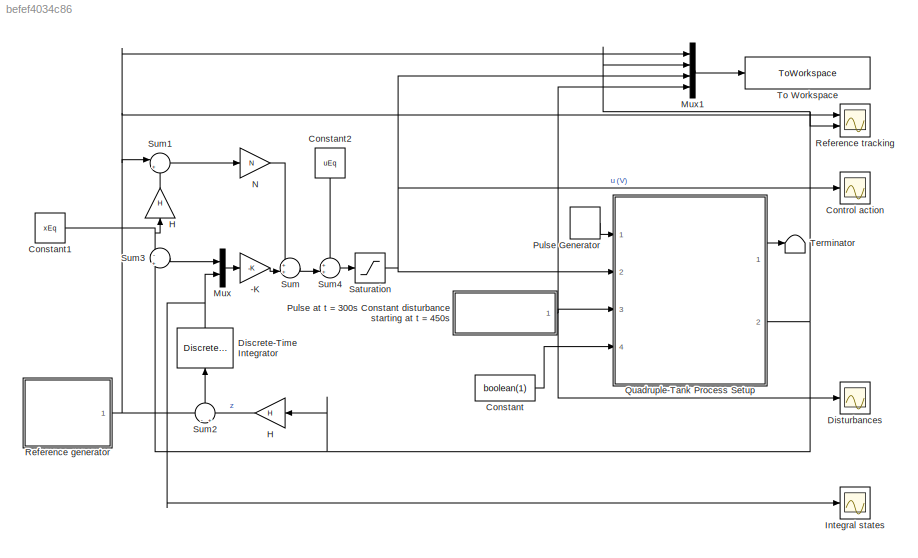
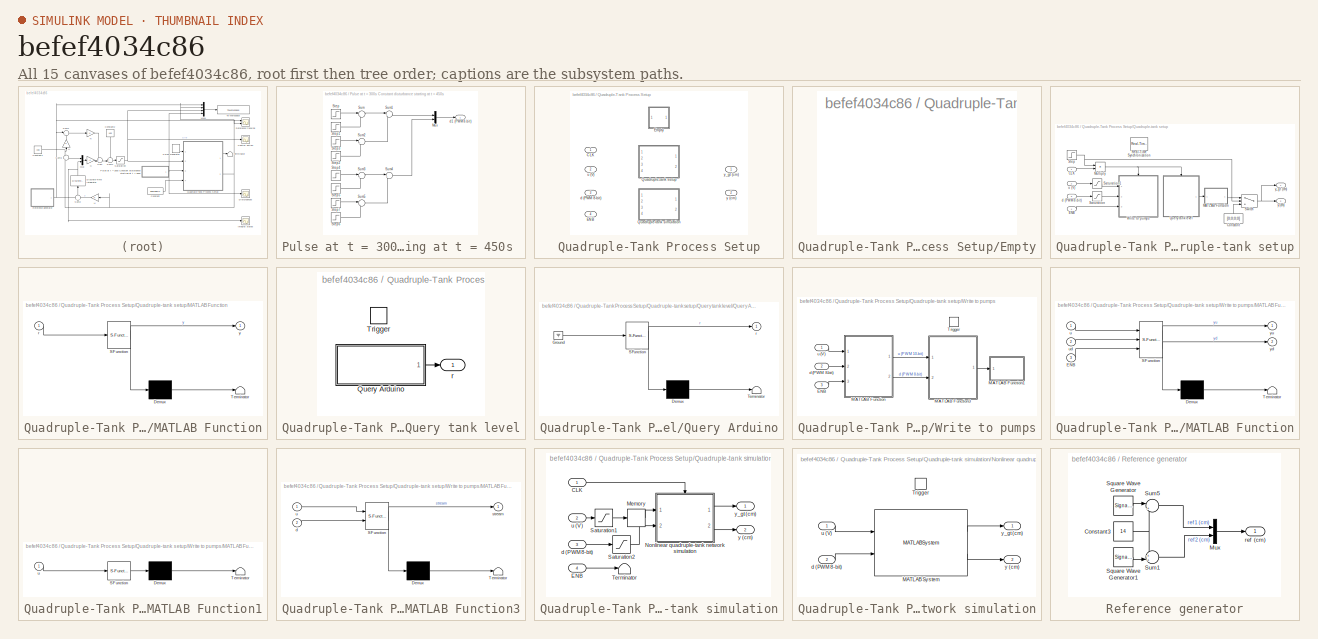
[diagram: thumbnail index - all 15 canvases of the model, root first then tree order]
MODEL slx_befef4034c86
KIND model
CONFIG AbsTol = auto
CONFIG EnableMultiTasking = off
CONFIG FixedStep = 0.5
CONFIG MaxStep = auto
CONFIG MinStep = auto
CONFIG RelTol = 1e-3
CONFIG SampleTimeConstraint = Unconstrained
CONFIG SolverName = FixedStepDiscrete
CONFIG StartTime = 0.0
CONFIG StopTime = 720
BLOCK [Gain] -K
  Gain = -K
  Multiplication = Matrix(K*u) (u vector)
BLOCK [Constant] Constant
  Priority = 4
  Value = boolean(1)
BLOCK [Constant] Constant1
  Value = xEq
BLOCK [Constant] Constant2
  NameLocation = left
  Value = uEq
BLOCK [Scope] Control action
  Floating = off
  NumInputPorts = 1
  Ports = [1]
  ScopeSpecificationString = Simulink.scopes.TimeScopeBlockCfg('CurrentConfiguration', extmgr.ConfigurationSet(extmgr.Configuration('Core','General UI',true),extmgr.Configuration('Core','Source UI',true),extmgr.Configuration('Sources','WiredSimulink',true,'DataLoggingVariableName','ScopeData1'),extmgr.Configuration('Visuals','Time Domain',true,'SerializedDisplays',{struct('MinYLimReal','-1.5','MaxYLimReal','13.5','YLabelReal'...<+1401ch>
BLOCK [DiscreteIntegrator] Discrete-Time Integrator
  ICPrevOutput = DiscIntNeverNeededParam
  ICPrevScaledInput = DiscIntNeverNeededParam
  InitialConditionSetting = Auto
  LimitOutput = on
  LowerSaturationLimit = -15
  NameLocation = right
  Ports = [1, 1]
  SampleTime = -1
  UpperSaturationLimit = 15
BLOCK [Scope] Disturbances
  Floating = off
  NumInputPorts = 1
  Ports = [1]
  ScopeSpecificationString = Simulink.scopes.TimeScopeBlockCfg('CurrentConfiguration', extmgr.ConfigurationSet(extmgr.Configuration('Core','General UI',true),extmgr.Configuration('Core','Source UI',true),extmgr.Configuration('Sources','WiredSimulink',true,'DataLoggingVariableName','ScopeData2'),extmgr.Configuration('Visuals','Time Domain',true,'SerializedDisplays',{struct('MinYLimReal','-6.25','MaxYLimReal','56.25','YLabelRea...<+1472ch>
BLOCK [Gain] H
  Gain = H
  Multiplication = Matrix(K*u) (u vector)
  NameLocation = top
BLOCK [Gain] H 
  Gain = H
  Multiplication = Matrix(K*u) (u vector)
  NameLocation = right
BLOCK [Scope] Integral states
  Floating = off
  NumInputPorts = 1
  Ports = [1]
  ScopeSpecificationString = Simulink.scopes.TimeScopeBlockCfg('CurrentConfiguration', extmgr.ConfigurationSet(extmgr.Configuration('Core','General UI',true),extmgr.Configuration('Core','Source UI',true),extmgr.Configuration('Sources','WiredSimulink',true,'DataLoggingVariableName','ScopeData3'),extmgr.Configuration('Visuals','Time Domain',true,'SerializedDisplays',{struct('MinYLimReal','-18.75','MaxYLimReal','18.75','YLabelRe...<+1429ch>
BLOCK [Mux] Mux
  DisplayOption = bar
  Inputs = 2
  Ports = [2, 1]
BLOCK [Mux] Mux1
  DisplayOption = bar
  Ports = [4, 1]
BLOCK [Gain] N
  Gain = N
  Multiplication = Matrix(K*u) (u vector)
BLOCK [DiscretePulseGenerator] Pulse Generator
  Period = 1
  Ports = [0, 1]
  PulseType = Time based
  PulseWidth = 50
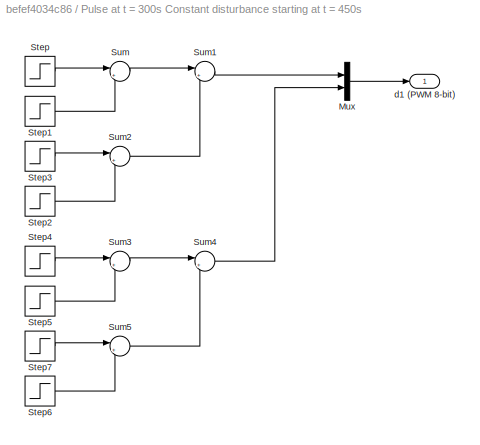
BLOCK [SubSystem] Pulse at t = 300s Constant disturbance starting at t = 450s 
  Ports = [0, 1]
  RequestExecContextInheritance = off
BLOCK [Mux] Pulse at t = 300s Constant disturbance starting at t = 450s /Mux
  DisplayOption = bar
  Inputs = 2
  Ports = [2, 1]
BLOCK [Step] Pulse at t = 300s Constant disturbance starting at t = 450s /Step
  After = 50
  SampleTime = 0
  Time = 300
BLOCK [Step] Pulse at t = 300s Constant disturbance starting at t = 450s /Step1
  After = -50
  SampleTime = 0
  Time = 304
BLOCK [Step] Pulse at t = 300s Constant disturbance starting at t = 450s /Step2
  After = -41
  SampleTime = 0
  Time = 451
BLOCK [Step] Pulse at t = 300s Constant disturbance starting at t = 450s /Step3
  After = 50
  SampleTime = 0
  Time = 450
BLOCK [Step] Pulse at t = 300s Constant disturbance starting at t = 450s /Step4
  After = 50
  SampleTime = 0
  Time = 250
BLOCK [Step] Pulse at t = 300s Constant disturbance starting at t = 450s /Step5
  After = -50
  SampleTime = 0
  Time = 254
BLOCK [Step] Pulse at t = 300s Constant disturbance starting at t = 450s /Step6
  After = -41
  SampleTime = 0
  Time = 401
BLOCK [Step] Pulse at t = 300s Constant disturbance starting at t = 450s /Step7
  After = 50
  SampleTime = 0
  Time = 400
BLOCK [Sum] Pulse at t = 300s Constant disturbance starting at t = 450s /Sum
  Inputs = |++
  Ports = [2, 1]
BLOCK [Sum] Pulse at t = 300s Constant disturbance starting at t = 450s /Sum1
  Inputs = |++
  Ports = [2, 1]
BLOCK [Sum] Pulse at t = 300s Constant disturbance starting at t = 450s /Sum2
  Inputs = |++
  Ports = [2, 1]
BLOCK [Sum] Pulse at t = 300s Constant disturbance starting at t = 450s /Sum3
  Inputs = |++
  Ports = [2, 1]
BLOCK [Sum] Pulse at t = 300s Constant disturbance starting at t = 450s /Sum4
  Inputs = |++
  Ports = [2, 1]
BLOCK [Sum] Pulse at t = 300s Constant disturbance starting at t = 450s /Sum5
  Inputs = |++
  Ports = [2, 1]
BLOCK [Outport] Pulse at t = 300s Constant disturbance starting at t = 450s /d1 (PWM 8-bit)
  VectorParamsAs1DForOutWhenUnconnected = off
BLOCK [SubSystem] Quadruple-Tank Process Setup
  InitFcn = % Load parameters\ncte = quadrupleLoadParameters();\n% Select simulation mode if unspecified\nif ~exist('experimentalSetup')\nexperimentalSetup = false;\nend\nif experimentalSetup\nif exist('arduinoPort')\nif ~isempty(instrfind)\nfclose(instrfind);\ndelete(instrfind);\nend\narduino = serial(arduinoPort,...\n                'BaudRate',9600,...\n                'ByteOrder','bigEndian',...\n                'DataBit...<+223ch>
  Ports = [4, 2]
  RequestExecContextInheritance = off
  StopFcn = if experimentalSetup\nfclose(arduino);\nend
  Variant = on
BLOCK [Inport] Quadruple-Tank Process Setup/CLK
BLOCK [Inport] Quadruple-Tank Process Setup/ENB
  Port = 4
BLOCK [SubSystem] Quadruple-Tank Process Setup/Empty
  Ports = []
  RequestExecContextInheritance = off
  VariantControl = %
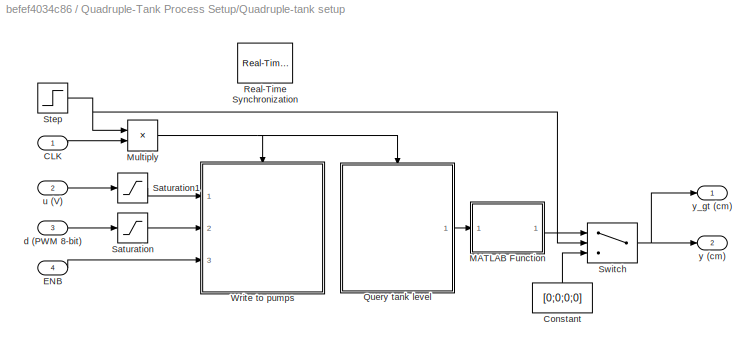
BLOCK [SubSystem] Quadruple-Tank Process Setup/Quadruple-tank setup
  Ports = [4, 2]
  RequestExecContextInheritance = off
  VariantControl = experimentalSetup == true
BLOCK [Inport] Quadruple-Tank Process Setup/Quadruple-tank setup/CLK
BLOCK [Constant] Quadruple-Tank Process Setup/Quadruple-tank setup/Constant
  NameLocation = right
  Value = [0;0;0;0]
BLOCK [Inport] Quadruple-Tank Process Setup/Quadruple-tank setup/ENB
  Port = 4
BLOCK [SubSystem] Quadruple-Tank Process Setup/Quadruple-tank setup/MATLAB Function
  ErrorFcn = Stateflow.Translate.translate
  PermitHierarchicalResolution = ExplicitOnly
  Ports = [1, 1]
  RequestExecContextInheritance = off
  SFBlockType = MATLAB Function
  TreatAsAtomicUnit = on
BLOCK [Demux] Quadruple-Tank Process Setup/Quadruple-tank setup/MATLAB Function/ Demux 
  Outputs = 1
  Ports = [1, 1]
BLOCK [S-Function] Quadruple-Tank Process Setup/Quadruple-tank setup/MATLAB Function/ SFunction 
  EnableBusSupport = on
  FunctionName = sf_sfun
  Parameters = cte
  PortCounts = [1 2]
  Ports = [1, 2]
  SFcnIsStateOwnerBlock = off
  SFunctionDeploymentMode = off
  Tag = Stateflow S-Function 4
BLOCK [Terminator] Quadruple-Tank Process Setup/Quadruple-tank setup/MATLAB Function/ Terminator 
BLOCK [Inport] Quadruple-Tank Process Setup/Quadruple-tank setup/MATLAB Function/r
BLOCK [Outport] Quadruple-Tank Process Setup/Quadruple-tank setup/MATLAB Function/y
  VectorParamsAs1DForOutWhenUnconnected = off
BLOCK [Product] Quadruple-Tank Process Setup/Quadruple-tank setup/Multiply
  Ports = [2, 1]
BLOCK [SubSystem] Quadruple-Tank Process Setup/Quadruple-tank setup/Query tank level
  Ports = [0, 1, 0, 1]
  Priority = 1
  RequestExecContextInheritance = off
BLOCK [SubSystem] Quadruple-Tank Process Setup/Quadruple-tank setup/Query tank level/Query Arduino
  ErrorFcn = Stateflow.Translate.translate
  PermitHierarchicalResolution = ExplicitOnly
  Ports = [0, 1]
  RequestExecContextInheritance = off
  SFBlockType = MATLAB Function
  TreatAsAtomicUnit = on
BLOCK [Demux] Quadruple-Tank Process Setup/Quadruple-tank setup/Query tank level/Query Arduino/ Demux 
  Outputs = 1
  Ports = [1, 1]
BLOCK [Ground] Quadruple-Tank Process Setup/Quadruple-tank setup/Query tank level/Query Arduino/ Ground 
BLOCK [S-Function] Quadruple-Tank Process Setup/Quadruple-tank setup/Query tank level/Query Arduino/ SFunction 
  EnableBusSupport = on
  FunctionName = sf_sfun
  PortCounts = [1 2]
  Ports = [1, 2]
  SFcnIsStateOwnerBlock = off
  SFunctionDeploymentMode = off
  Tag = Stateflow S-Function 2
BLOCK [Terminator] Quadruple-Tank Process Setup/Quadruple-tank setup/Query tank level/Query Arduino/ Terminator 
BLOCK [Outport] Quadruple-Tank Process Setup/Quadruple-tank setup/Query tank level/Query Arduino/r
  VectorParamsAs1DForOutWhenUnconnected = off
BLOCK [TriggerPort] Quadruple-Tank Process Setup/Quadruple-tank setup/Query tank level/Trigger
  PortDimensions = 1
  Ports = []
  StatesWhenEnabling = held
  VariantControl = Variant
BLOCK [Outport] Quadruple-Tank Process Setup/Quadruple-tank setup/Query tank level/r
  VectorParamsAs1DForOutWhenUnconnected = off
BLOCK [Reference] Quadruple-Tank Process Setup/Quadruple-tank setup/Real-Time Synchronization  REF=sldrtlib/Real-Time
Synchronization
  Ports = []
  Priority = 5
  SourceBlock = sldrtlib/Real-Time\nSynchronization
  SourceProductBaseCode = WT
  SourceType = Simulink Desktop Real-Time Synchronization
BLOCK [Saturate] Quadruple-Tank Process Setup/Quadruple-tank setup/Saturation
  LowerLimit = 0
  UpperLimit = 255
BLOCK [Saturate] Quadruple-Tank Process Setup/Quadruple-tank setup/Saturation1
  LowerLimit = cte.uMin
  UpperLimit = cte.uMax
BLOCK [Step] Quadruple-Tank Process Setup/Quadruple-tank setup/Step
  SampleTime = 0
  Time = 5
BLOCK [Switch] Quadruple-Tank Process Setup/Quadruple-tank setup/Switch
  Criteria = u2 ~= 0
  InputSameDT = off
  SaturateOnIntegerOverflow = off
BLOCK [SubSystem] Quadruple-Tank Process Setup/Quadruple-tank setup/Write to pumps
  Ports = [3, 0, 0, 1]
  Priority = 100
  RequestExecContextInheritance = off
BLOCK [Inport] Quadruple-Tank Process Setup/Quadruple-tank setup/Write to pumps/ENB
  Port = 3
BLOCK [SubSystem] Quadruple-Tank Process Setup/Quadruple-tank setup/Write to pumps/MATLAB Function
  ErrorFcn = Stateflow.Translate.translate
  PermitHierarchicalResolution = ExplicitOnly
  Ports = [3, 2]
  RequestExecContextInheritance = off
  SFBlockType = MATLAB Function
  TreatAsAtomicUnit = on
BLOCK [Demux] Quadruple-Tank Process Setup/Quadruple-tank setup/Write to pumps/MATLAB Function/ Demux 
  Outputs = 1
  Ports = [1, 1]
BLOCK [S-Function] Quadruple-Tank Process Setup/Quadruple-tank setup/Write to pumps/MATLAB Function/ SFunction 
  EnableBusSupport = on
  FunctionName = sf_sfun
  Parameters = cte
  PortCounts = [3 3]
  Ports = [3, 3]
  SFcnIsStateOwnerBlock = off
  SFunctionDeploymentMode = off
  Tag = Stateflow S-Function 3
BLOCK [Terminator] Quadruple-Tank Process Setup/Quadruple-tank setup/Write to pumps/MATLAB Function/ Terminator 
BLOCK [Inport] Quadruple-Tank Process Setup/Quadruple-tank setup/Write to pumps/MATLAB Function/ENB
  Port = 3
BLOCK [Inport] Quadruple-Tank Process Setup/Quadruple-tank setup/Write to pumps/MATLAB Function/u
BLOCK [Inport] Quadruple-Tank Process Setup/Quadruple-tank setup/Write to pumps/MATLAB Function/ud
  Port = 2
BLOCK [Outport] Quadruple-Tank Process Setup/Quadruple-tank setup/Write to pumps/MATLAB Function/yd
  Port = 2
  VectorParamsAs1DForOutWhenUnconnected = off
BLOCK [Outport] Quadruple-Tank Process Setup/Quadruple-tank setup/Write to pumps/MATLAB Function/yu
  VectorParamsAs1DForOutWhenUnconnected = off
BLOCK [SubSystem] Quadruple-Tank Process Setup/Quadruple-tank setup/Write to pumps/MATLAB Function1
  ErrorFcn = Stateflow.Translate.translate
  PermitHierarchicalResolution = ExplicitOnly
  Ports = [1]
  RequestExecContextInheritance = off
  SFBlockType = MATLAB Function
  TreatAsAtomicUnit = on
BLOCK [Demux] Quadruple-Tank Process Setup/Quadruple-tank setup/Write to pumps/MATLAB Function1/ Demux 
  Outputs = 1
  Ports = [1, 1]
BLOCK [S-Function] Quadruple-Tank Process Setup/Quadruple-tank setup/Write to pumps/MATLAB Function1/ SFunction 
  EnableBusSupport = on
  FunctionName = sf_sfun
  PortCounts = [1 1]
  Ports = [1, 1]
  SFcnIsStateOwnerBlock = off
  SFunctionDeploymentMode = off
  Tag = Stateflow S-Function 1
BLOCK [Terminator] Quadruple-Tank Process Setup/Quadruple-tank setup/Write to pumps/MATLAB Function1/ Terminator 
BLOCK [Inport] Quadruple-Tank Process Setup/Quadruple-tank setup/Write to pumps/MATLAB Function1/u
BLOCK [SubSystem] Quadruple-Tank Process Setup/Quadruple-tank setup/Write to pumps/MATLAB Function3
  ErrorFcn = Stateflow.Translate.translate
  PermitHierarchicalResolution = ExplicitOnly
  Ports = [2, 1]
  RequestExecContextInheritance = off
  SFBlockType = MATLAB Function
  TreatAsAtomicUnit = on
BLOCK [Demux] Quadruple-Tank Process Setup/Quadruple-tank setup/Write to pumps/MATLAB Function3/ Demux 
  Outputs = 1
  Ports = [1, 1]
BLOCK [S-Function] Quadruple-Tank Process Setup/Quadruple-tank setup/Write to pumps/MATLAB Function3/ SFunction 
  EnableBusSupport = on
  FunctionName = sf_sfun
  PortCounts = [2 2]
  Ports = [2, 2]
  SFcnIsStateOwnerBlock = off
  SFunctionDeploymentMode = off
  Tag = Stateflow S-Function 5
BLOCK [Terminator] Quadruple-Tank Process Setup/Quadruple-tank setup/Write to pumps/MATLAB Function3/ Terminator 
BLOCK [Inport] Quadruple-Tank Process Setup/Quadruple-tank setup/Write to pumps/MATLAB Function3/d
  Port = 2
BLOCK [Outport] Quadruple-Tank Process Setup/Quadruple-tank setup/Write to pumps/MATLAB Function3/stream
  VectorParamsAs1DForOutWhenUnconnected = off
BLOCK [Inport] Quadruple-Tank Process Setup/Quadruple-tank setup/Write to pumps/MATLAB Function3/u
BLOCK [TriggerPort] Quadruple-Tank Process Setup/Quadruple-tank setup/Write to pumps/Trigger
  PortDimensions = 1
  Ports = []
  StatesWhenEnabling = held
  VariantControl = Variant
BLOCK [Inport] Quadruple-Tank Process Setup/Quadruple-tank setup/Write to pumps/d (PWM 8-bit)
  Port = 2
BLOCK [Inport] Quadruple-Tank Process Setup/Quadruple-tank setup/Write to pumps/u (V)
BLOCK [Inport] Quadruple-Tank Process Setup/Quadruple-tank setup/d (PWM 8-bit)
  Port = 3
BLOCK [Inport] Quadruple-Tank Process Setup/Quadruple-tank setup/u (V)
  Port = 2
BLOCK [Outport] Quadruple-Tank Process Setup/Quadruple-tank setup/y (cm)
  Port = 2
  SignalType = real
  VarSizeSig = No
  VectorParamsAs1DForOutWhenUnconnected = off
BLOCK [Outport] Quadruple-Tank Process Setup/Quadruple-tank setup/y_gt (cm)
  SignalType = real
  VarSizeSig = No
  VectorParamsAs1DForOutWhenUnconnected = off
BLOCK [SubSystem] Quadruple-Tank Process Setup/Quadruple-tank simulation
  Ports = [4, 2]
  Priority = 4
  RequestExecContextInheritance = off
  VariantControl = experimentalSetup == false
BLOCK [Inport] Quadruple-Tank Process Setup/Quadruple-tank simulation/CLK
BLOCK [Inport] Quadruple-Tank Process Setup/Quadruple-tank simulation/ENB
  Port = 4
BLOCK [Memory] Quadruple-Tank Process Setup/Quadruple-tank simulation/Memory
BLOCK [SubSystem] Quadruple-Tank Process Setup/Quadruple-tank simulation/Nonlinear quadruple-tank network simulation
  Ports = [2, 2, 0, 1]
  Priority = 10
  RequestExecContextInheritance = off
BLOCK [MATLABSystem] Quadruple-Tank Process Setup/Quadruple-tank simulation/Nonlinear quadruple-tank network simulation/MATLAB System
  MaskDisplay = disp('quadrupleSimObj');\nport_label('input',1,'u');\nport_label('input',2,'d');\nport_label('output',1,'y_gt');\nport_label('output',2,'y');
  MaskType = quadrupleSimObj
  Ports = [2, 2]
  SimulateUsing = Interpreted execution
  System = quadrupleSimObj
BLOCK [TriggerPort] Quadruple-Tank Process Setup/Quadruple-tank simulation/Nonlinear quadruple-tank network simulation/Trigger
  PortDimensions = 1
  Ports = []
  StatesWhenEnabling = held
  VariantControl = Variant
BLOCK [Inport] Quadruple-Tank Process Setup/Quadruple-tank simulation/Nonlinear quadruple-tank network simulation/d (PWM 8-bit)
  Port = 2
BLOCK [Inport] Quadruple-Tank Process Setup/Quadruple-tank simulation/Nonlinear quadruple-tank network simulation/u (V)
BLOCK [Outport] Quadruple-Tank Process Setup/Quadruple-tank simulation/Nonlinear quadruple-tank network simulation/y (cm)
  Port = 2
  VectorParamsAs1DForOutWhenUnconnected = off
BLOCK [Outport] Quadruple-Tank Process Setup/Quadruple-tank simulation/Nonlinear quadruple-tank network simulation/y_gt (cm)
  VectorParamsAs1DForOutWhenUnconnected = off
BLOCK [Saturate] Quadruple-Tank Process Setup/Quadruple-tank simulation/Saturation1
  LowerLimit = cte.uMin
  UpperLimit = cte.uMax
BLOCK [Saturate] Quadruple-Tank Process Setup/Quadruple-tank simulation/Saturation2
  LowerLimit = 0
  UpperLimit = 2^8-1
BLOCK [Terminator] Quadruple-Tank Process Setup/Quadruple-tank simulation/Terminator
BLOCK [Inport] Quadruple-Tank Process Setup/Quadruple-tank simulation/d (PWM 8-bit)
  Port = 3
BLOCK [Inport] Quadruple-Tank Process Setup/Quadruple-tank simulation/u (V)
  Port = 2
BLOCK [Outport] Quadruple-Tank Process Setup/Quadruple-tank simulation/y (cm)
  Port = 2
  VectorParamsAs1DForOutWhenUnconnected = off
BLOCK [Outport] Quadruple-Tank Process Setup/Quadruple-tank simulation/y_gt (cm)
  VectorParamsAs1DForOutWhenUnconnected = off
BLOCK [Inport] Quadruple-Tank Process Setup/d (PWM 8-bit)
  Port = 3
BLOCK [Inport] Quadruple-Tank Process Setup/u (V)
  Port = 2
BLOCK [Outport] Quadruple-Tank Process Setup/y (cm)
  Port = 2
  VectorParamsAs1DForOutWhenUnconnected = off
BLOCK [Outport] Quadruple-Tank Process Setup/y_gt (cm)
  VectorParamsAs1DForOutWhenUnconnected = off
BLOCK [SubSystem] Reference generator
  Ports = [0, 1]
  RequestExecContextInheritance = off
BLOCK [Constant] Reference generator/Constant3
  Value = 14
BLOCK [Mux] Reference generator/Mux
  DisplayOption = bar
  Inputs = 2
  Ports = [2, 1]
BLOCK [SignalGenerator] Reference generator/Square Wave Generator
  Amplitude = 3
  Frequency = 1/240
  Ports = [0, 1]
  WaveForm = square
BLOCK [SignalGenerator] Reference generator/Square Wave Generator1
  Amplitude = 4
  Frequency = 1/300
  Ports = [0, 1]
  WaveForm = square
BLOCK [Sum] Reference generator/Sum1
  Inputs = ++|
  Ports = [2, 1]
BLOCK [Sum] Reference generator/Sum5
  Inputs = |++
  Ports = [2, 1]
BLOCK [Outport] Reference generator/ref (cm)
  VectorParamsAs1DForOutWhenUnconnected = off
BLOCK [Scope] Reference tracking
  Floating = off
  NumInputPorts = 2
  Ports = [2]
  ScopeSpecificationString = Simulink.scopes.TimeScopeBlockCfg('CurrentConfiguration', extmgr.ConfigurationSet(extmgr.Configuration('Core','General UI',true),extmgr.Configuration('Core','Source UI',true),extmgr.Configuration('Sources','WiredSimulink',true),extmgr.Configuration('Visuals','Time Domain',true,'SerializedDisplays',{struct('MinYLimReal','-2.45148','MaxYLimReal','22.06334','YLabelReal','','MinYLimMag','0.00000','Max...<+1537ch>
BLOCK [Saturate] Saturation
  LowerLimit = 0
  UpperLimit = 12
BLOCK [Sum] Sum
  Inputs = ++|
  Ports = [2, 1]
BLOCK [Sum] Sum1
  Inputs = |+-
  Ports = [2, 1]
BLOCK [Sum] Sum2
  Inputs = -|+
  NameLocation = right
  Ports = [2, 1]
BLOCK [Sum] Sum3
  Inputs = -|+
  Ports = [2, 1]
BLOCK [Sum] Sum4
  Inputs = ++|
  Ports = [2, 1]
BLOCK [Terminator] Terminator
BLOCK [ToWorkspace] To Workspace
  FixptAsFi = on
  MaxDataPoints = inf
  Ports = [1]
  SampleTime = 1
  SaveFormat = Timeseries
  VariableName = quadruple_example_LQR_data
LINE -K:1 -> Sum:2
NET Constant1:1 -> H :1, Sum3:1
LINE Constant2:1 -> Sum4:1
LINE Constant:1 -> Quadruple-Tank Process Setup:4
NET Discrete-Time Integrator:1 -> Integral states:1, Mux:2
LINE H :1 -> Sum1:2
LINE H:1 -> Sum2:2
LINE Mux1:1 -> To Workspace:1
LINE Mux:1 -> -K:1
LINE N:1 -> Sum:1
LINE Pulse Generator:1 -> Quadruple-Tank Process Setup:1
LINE Pulse at t = 300s Constant disturbance starting at t = 450s /Mux:1 -> Pulse at t = 300s Constant disturbance starting at t = 450s /d1 (PWM 8-bit):1
LINE Pulse at t = 300s Constant disturbance starting at t = 450s /Step1:1 -> Pulse at t = 300s Constant disturbance starting at t = 450s /Sum:2
LINE Pulse at t = 300s Constant disturbance starting at t = 450s /Step2:1 -> Pulse at t = 300s Constant disturbance starting at t = 450s /Sum2:2
LINE Pulse at t = 300s Constant disturbance starting at t = 450s /Step3:1 -> Pulse at t = 300s Constant disturbance starting at t = 450s /Sum2:1
LINE Pulse at t = 300s Constant disturbance starting at t = 450s /Step4:1 -> Pulse at t = 300s Constant disturbance starting at t = 450s /Sum3:1
LINE Pulse at t = 300s Constant disturbance starting at t = 450s /Step5:1 -> Pulse at t = 300s Constant disturbance starting at t = 450s /Sum3:2
LINE Pulse at t = 300s Constant disturbance starting at t = 450s /Step6:1 -> Pulse at t = 300s Constant disturbance starting at t = 450s /Sum5:2
LINE Pulse at t = 300s Constant disturbance starting at t = 450s /Step7:1 -> Pulse at t = 300s Constant disturbance starting at t = 450s /Sum5:1
LINE Pulse at t = 300s Constant disturbance starting at t = 450s /Step:1 -> Pulse at t = 300s Constant disturbance starting at t = 450s /Sum:1
LINE Pulse at t = 300s Constant disturbance starting at t = 450s /Sum1:1 -> Pulse at t = 300s Constant disturbance starting at t = 450s /Mux:1
LINE Pulse at t = 300s Constant disturbance starting at t = 450s /Sum2:1 -> Pulse at t = 300s Constant disturbance starting at t = 450s /Sum1:2
LINE Pulse at t = 300s Constant disturbance starting at t = 450s /Sum3:1 -> Pulse at t = 300s Constant disturbance starting at t = 450s /Sum4:1
LINE Pulse at t = 300s Constant disturbance starting at t = 450s /Sum4:1 -> Pulse at t = 300s Constant disturbance starting at t = 450s /Mux:2
LINE Pulse at t = 300s Constant disturbance starting at t = 450s /Sum5:1 -> Pulse at t = 300s Constant disturbance starting at t = 450s /Sum4:2
LINE Pulse at t = 300s Constant disturbance starting at t = 450s /Sum:1 -> Pulse at t = 300s Constant disturbance starting at t = 450s /Sum1:1
NET Pulse at t = 300s Constant disturbance starting at t = 450s :1 -> Disturbances:1, Mux1:4, Quadruple-Tank Process Setup:3
LINE Quadruple-Tank Process Setup/Quadruple-tank setup/CLK:1 -> Quadruple-Tank Process Setup/Quadruple-tank setup/Multiply:2
LINE Quadruple-Tank Process Setup/Quadruple-tank setup/Constant:1 -> Quadruple-Tank Process Setup/Quadruple-tank setup/Switch:3
LINE Quadruple-Tank Process Setup/Quadruple-tank setup/ENB:1 -> Quadruple-Tank Process Setup/Quadruple-tank setup/Write to pumps:3
LINE Quadruple-Tank Process Setup/Quadruple-tank setup/MATLAB Function:1 -> Quadruple-Tank Process Setup/Quadruple-tank setup/Switch:1
NET Quadruple-Tank Process Setup/Quadruple-tank setup/Multiply:1 -> Quadruple-Tank Process Setup/Quadruple-tank setup/Query tank level:trigger, Quadruple-Tank Process Setup/Quadruple-tank setup/Write to pumps:trigger
LINE Quadruple-Tank Process Setup/Quadruple-tank setup/Query tank level/Query Arduino:1 -> Quadruple-Tank Process Setup/Quadruple-tank setup/Query tank level/r:1
LINE Quadruple-Tank Process Setup/Quadruple-tank setup/Query tank level:1 -> Quadruple-Tank Process Setup/Quadruple-tank setup/MATLAB Function:1
LINE Quadruple-Tank Process Setup/Quadruple-tank setup/Saturation1:1 -> Quadruple-Tank Process Setup/Quadruple-tank setup/Write to pumps:1
LINE Quadruple-Tank Process Setup/Quadruple-tank setup/Saturation:1 -> Quadruple-Tank Process Setup/Quadruple-tank setup/Write to pumps:2
NET Quadruple-Tank Process Setup/Quadruple-tank setup/Step:1 -> Quadruple-Tank Process Setup/Quadruple-tank setup/Multiply:1, Quadruple-Tank Process Setup/Quadruple-tank setup/Switch:2
NET Quadruple-Tank Process Setup/Quadruple-tank setup/Switch:1 -> Quadruple-Tank Process Setup/Quadruple-tank setup/y (cm):1, Quadruple-Tank Process Setup/Quadruple-tank setup/y_gt (cm):1
LINE Quadruple-Tank Process Setup/Quadruple-tank setup/Write to pumps/ENB:1 -> Quadruple-Tank Process Setup/Quadruple-tank setup/Write to pumps/MATLAB Function:3
LINE Quadruple-Tank Process Setup/Quadruple-tank setup/Write to pumps/MATLAB Function3:1 -> Quadruple-Tank Process Setup/Quadruple-tank setup/Write to pumps/MATLAB Function1:1
LINE Quadruple-Tank Process Setup/Quadruple-tank setup/Write to pumps/MATLAB Function:1 -> Quadruple-Tank Process Setup/Quadruple-tank setup/Write to pumps/MATLAB Function3:1
LINE Quadruple-Tank Process Setup/Quadruple-tank setup/Write to pumps/MATLAB Function:2 -> Quadruple-Tank Process Setup/Quadruple-tank setup/Write to pumps/MATLAB Function3:2
LINE Quadruple-Tank Process Setup/Quadruple-tank setup/Write to pumps/d (PWM 8-bit):1 -> Quadruple-Tank Process Setup/Quadruple-tank setup/Write to pumps/MATLAB Function:2
LINE Quadruple-Tank Process Setup/Quadruple-tank setup/Write to pumps/u (V):1 -> Quadruple-Tank Process Setup/Quadruple-tank setup/Write to pumps/MATLAB Function:1
LINE Quadruple-Tank Process Setup/Quadruple-tank setup/d (PWM 8-bit):1 -> Quadruple-Tank Process Setup/Quadruple-tank setup/Saturation:1
LINE Quadruple-Tank Process Setup/Quadruple-tank setup/u (V):1 -> Quadruple-Tank Process Setup/Quadruple-tank setup/Saturation1:1
LINE Quadruple-Tank Process Setup/Quadruple-tank simulation/CLK:1 -> Quadruple-Tank Process Setup/Quadruple-tank simulation/Nonlinear quadruple-tank network simulation:trigger
LINE Quadruple-Tank Process Setup/Quadruple-tank simulation/ENB:1 -> Quadruple-Tank Process Setup/Quadruple-tank simulation/Terminator:1
LINE Quadruple-Tank Process Setup/Quadruple-tank simulation/Memory:1 -> Quadruple-Tank Process Setup/Quadruple-tank simulation/Nonlinear quadruple-tank network simulation:1
LINE Quadruple-Tank Process Setup/Quadruple-tank simulation/Nonlinear quadruple-tank network simulation/MATLAB System:1 -> Quadruple-Tank Process Setup/Quadruple-tank simulation/Nonlinear quadruple-tank network simulation/y_gt (cm):1
LINE Quadruple-Tank Process Setup/Quadruple-tank simulation/Nonlinear quadruple-tank network simulation/MATLAB System:2 -> Quadruple-Tank Process Setup/Quadruple-tank simulation/Nonlinear quadruple-tank network simulation/y (cm):1
LINE Quadruple-Tank Process Setup/Quadruple-tank simulation/Nonlinear quadruple-tank network simulation/d (PWM 8-bit):1 -> Quadruple-Tank Process Setup/Quadruple-tank simulation/Nonlinear quadruple-tank network simulation/MATLAB System:2
LINE Quadruple-Tank Process Setup/Quadruple-tank simulation/Nonlinear quadruple-tank network simulation/u (V):1 -> Quadruple-Tank Process Setup/Quadruple-tank simulation/Nonlinear quadruple-tank network simulation/MATLAB System:1
LINE Quadruple-Tank Process Setup/Quadruple-tank simulation/Nonlinear quadruple-tank network simulation:1 -> Quadruple-Tank Process Setup/Quadruple-tank simulation/y_gt (cm):1
LINE Quadruple-Tank Process Setup/Quadruple-tank simulation/Nonlinear quadruple-tank network simulation:2 -> Quadruple-Tank Process Setup/Quadruple-tank simulation/y (cm):1
LINE Quadruple-Tank Process Setup/Quadruple-tank simulation/Saturation1:1 -> Quadruple-Tank Process Setup/Quadruple-tank simulation/Memory:1
LINE Quadruple-Tank Process Setup/Quadruple-tank simulation/Saturation2:1 -> Quadruple-Tank Process Setup/Quadruple-tank simulation/Nonlinear quadruple-tank network simulation:2
LINE Quadruple-Tank Process Setup/Quadruple-tank simulation/d (PWM 8-bit):1 -> Quadruple-Tank Process Setup/Quadruple-tank simulation/Saturation2:1
LINE Quadruple-Tank Process Setup/Quadruple-tank simulation/u (V):1 -> Quadruple-Tank Process Setup/Quadruple-tank simulation/Saturation1:1
LINE Quadruple-Tank Process Setup:1 -> Terminator:1
NET Quadruple-Tank Process Setup:2 -> H:1, Mux1:2, Reference tracking:2, Sum3:2
NET Reference generator/Constant3:1 -> Reference generator/Sum1:1, Reference generator/Sum5:2
LINE Reference generator/Mux:1 -> Reference generator/ref (cm):1
LINE Reference generator/Square Wave Generator1:1 -> Reference generator/Sum1:2
LINE Reference generator/Square Wave Generator:1 -> Reference generator/Sum5:1
LINE Reference generator/Sum1:1 -> Reference generator/Mux:2
LINE Reference generator/Sum5:1 -> Reference generator/Mux:1
NET Reference generator:1 -> Mux1:1, Reference tracking:1, Sum1:1, Sum2:1
NET Saturation:1 -> Control action:1, Mux1:3, Quadruple-Tank Process Setup:2
LINE Sum1:1 -> N:1
LINE Sum2:1 -> Discrete-Time Integrator:1
LINE Sum3:1 -> Mux:1
LINE Sum4:1 -> Saturation:1
LINE Sum:1 -> Sum4:2
note: NET lines group one-source signal fan-out (src -> all destinations, sorted); 1:1 wires keep LINE
CHART Quadruple-Tank Process Setup/Quadruple-tank setup/Write to pumps/MATLAB Function1 states=1 transitions=1
  STATE_LABEL 'eML_blk_kernel()'
  STATE_LABEL 'SCRIPT:\nfunction toArduino(u)\n% Find arduino serial object\ncoder.extrinsic(\'instrfind\'); \npersistent arduino;\nif isempty(arduino)\n    arduino = instrfind(\'Status\',\'open\',\'Baud\',9600);\nend\n% Send metadata\nfprintf(arduino, "#16");\n% Send actuation inputs\nfwrite(arduino,u,\'uint16\');\nend\n'
CHART Quadruple-Tank Process Setup/Quadruple-tank setup/Query tank level/Query Arduino states=1 transitions=1
  STATE_LABEL 'eML_blk_kernel()'
  STATE_LABEL "SCRIPT:\nfunction r = queryArduino()\n% Find arduino serial object\ncoder.extrinsic('instrfind'); \npersistent arduino;\nif isempty(arduino)\n    arduino = instrfind('Status','open','Baud',9600);\nend\n\n% Query arduino\nfprintf(arduino, '$');\n% Ignore metadata\nfread(arduino,[4 1],'uint8');\n% Read water-level data\naux = fread(arduino,[5 1],'uint16');\nu = zeros(5,1);\nu(5) = double(aux(5,1));\nfor i = 1:4\n    ...<+74ch>"
CHART Quadruple-Tank Process Setup/Quadruple-tank setup/Write to pumps/MATLAB Function states=1 transitions=1
  STATE_LABEL 'eML_blk_kernel()'
  STATE_LABEL 'SCRIPT:\nfunction [yu,yd] = pwm_u(u,ud,ENB,cte)\n% In u in volts\nif ENB\n    for i = 1:2\n        u(i) = 1023*(cte.c(1,i)*cte.c(3,i)-cte.c(2,i)*cte.k(i)*u(i))/(cte.c(1,i)-cte.k(i)*u(i));\n    end\n    yu = u;\n    yd = ud;\nelse\n    yu = zeros(2,1);\n    yd = zeros(2,1);\nend\n\n\n\n'
CHART Quadruple-Tank Process Setup/Quadruple-tank setup/MATLAB Function states=1 transitions=1
  STATE_LABEL 'eML_blk_kernel()'
  STATE_LABEL 'SCRIPT:\nfunction y = water_level(r,cte)\ny = zeros(4,1);\nfor i = 1:4\n   y(i) = r(i)*cte.dh_dr(i)+cte.h0(i);\nend'
CHART Quadruple-Tank Process Setup/Quadruple-tank setup/Write to pumps/MATLAB Function3 states=1 transitions=1
  STATE_LABEL 'eML_blk_kernel()'
  STATE_LABEL 'SCRIPT:\nfunction stream = packPWM10bit(u,d)\n    %% Saturation \n    u(u<0) = 0;\n    u(u>2^10-1) =2^10-1;\n    d(d<0) = 0;\n    d(d>2^8-1) =2^8-1;\n    %% Pack PWM \n    stream = uint16(zeros(3,1));\n    % First two actuation pump signals of 10 bits are sent individually\n    stream(1:2) = uint16(round(u)); \n    % Two disturbance pump signals of 8 bits are sent together as a 16 bit\n    % uint16_t\n    stre...<+53ch>'
CHART  states=0 transitions=0
CHART  states=0 transitions=0
CHART  states=0 transitions=0
CHART  states=0 transitions=0
CHART  states=0 transitions=0
